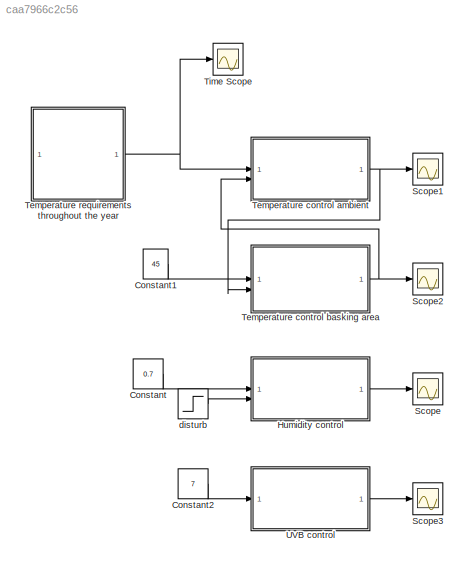
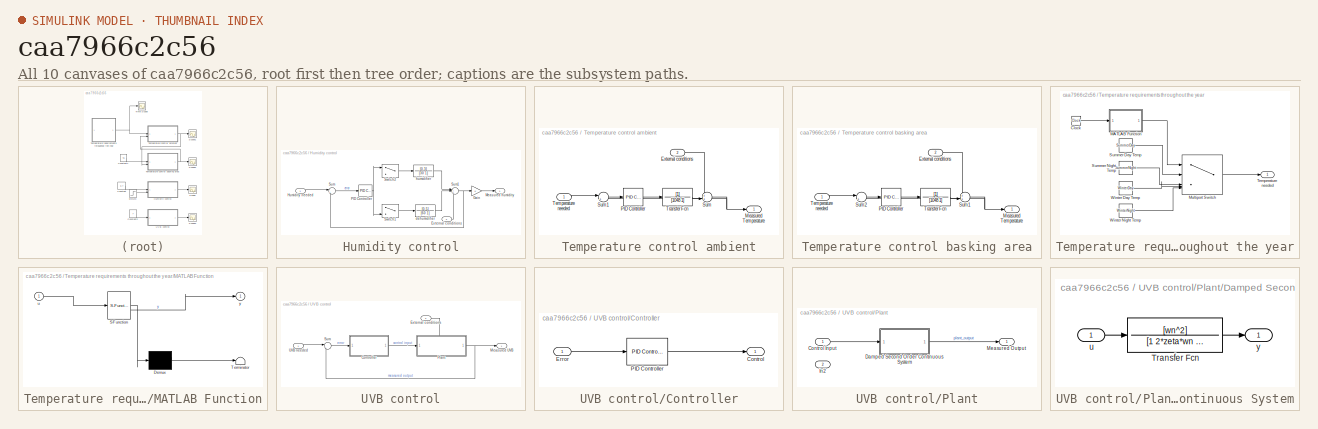
[diagram: thumbnail index - all 10 canvases of the model, root first then tree order]
MODEL slx_caa7966c2c56
KIND model
CONFIG AbsTol = auto
CONFIG EnableMultiTasking = on
CONFIG FixedStep = auto
CONFIG MaxStep = auto
CONFIG MinStep = auto
CONFIG RelTol = 1e-4
CONFIG SampleTimeConstraint = Unconstrained
CONFIG SolverName = VariableStepAuto
CONFIG StartTime = 0.0
CONFIG StopTime = 84600
BLOCK [Constant] Constant
  Value = 0.7
BLOCK [Constant] Constant1
  Value = 45
BLOCK [Constant] Constant2
  Value = 7
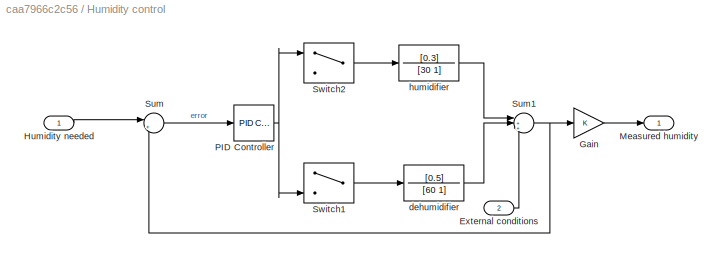
BLOCK [SubSystem] Humidity control
BLOCK [Inport] Humidity control/External conditions
  Port = 2
BLOCK [Gain] Humidity control/Gain
BLOCK [Inport] Humidity control/Humidity needed
BLOCK [Outport] Humidity control/Measured humidity
BLOCK [Reference] Humidity control/PID Controller  REF=slpidlib/PID Controller
  LibrarySourceBlock = simulink/Continuous/PID Controller
  SourceBlock = slpidlib/PID Controller
  SourceType = PID 1dof
BLOCK [Sum] Humidity control/Sum
  Inputs = |+-
BLOCK [Sum] Humidity control/Sum1
  Inputs = |++-
BLOCK [Switch] Humidity control/Switch1
  InputSameDT = off
  SaturateOnIntegerOverflow = off
BLOCK [Switch] Humidity control/Switch2
  InputSameDT = off
  SaturateOnIntegerOverflow = off
BLOCK [TransferFcn] Humidity control/dehumidifier
  Denominator = [60 1]
  Numerator = [0.5]
BLOCK [TransferFcn] Humidity control/humidifier 
  Denominator = [30 1]
  Numerator = [0.3]
BLOCK [Scope] Scope
  Floating = off
  NumInputPorts = 1
  ScopeSpecificationString = Simulink.scopes.TimeScopeBlockCfg('CurrentConfiguration', extmgr.ConfigurationSet(extmgr.Configuration('Core','General UI',true),extmgr.Configuration('Core','Source UI',true),extmgr.Configuration('Sources','WiredSimulink',true,'DataLoggingVariableName','ScopeData1'),extmgr.Configuration('Visuals','Time Domain',true),extmgr.Configuration('Tools','Plot Navigation',true),extmgr.Configuration('Tools',...<+40ch>
BLOCK [Scope] Scope1
  Floating = off
  NumInputPorts = 1
  ScopeSpecificationString = Simulink.scopes.TimeScopeBlockCfg('CurrentConfiguration', extmgr.ConfigurationSet(extmgr.Configuration('Core','General UI',true),extmgr.Configuration('Core','Source UI',true),extmgr.Configuration('Sources','WiredSimulink',true,'DataLoggingVariableName','ScopeData2'),extmgr.Configuration('Visuals','Time Domain',true),extmgr.Configuration('Tools','Plot Navigation',true),extmgr.Configuration('Tools',...<+40ch>
BLOCK [Scope] Scope2
  Floating = off
  NumInputPorts = 1
  ScopeSpecificationString = Simulink.scopes.TimeScopeBlockCfg('CurrentConfiguration', extmgr.ConfigurationSet(extmgr.Configuration('Core','General UI',true),extmgr.Configuration('Core','Source UI',true),extmgr.Configuration('Sources','WiredSimulink',true,'DataLoggingVariableName','ScopeData3'),extmgr.Configuration('Visuals','Time Domain',true),extmgr.Configuration('Tools','Plot Navigation',true),extmgr.Configuration('Tools',...<+40ch>
BLOCK [Scope] Scope3
  Floating = off
  NumInputPorts = 1
  ScopeSpecificationString = Simulink.scopes.TimeScopeBlockCfg('CurrentConfiguration', extmgr.ConfigurationSet(extmgr.Configuration('Core','General UI',true),extmgr.Configuration('Core','Source UI',true),extmgr.Configuration('Sources','WiredSimulink',true,'DataLoggingVariableName','ScopeData1'),extmgr.Configuration('Visuals','Time Domain',true),extmgr.Configuration('Tools','Plot Navigation',true),extmgr.Configuration('Tools',...<+40ch>
BLOCK [SubSystem] Temperature control ambient
BLOCK [Inport] Temperature control ambient/External conditions
  Port = 2
BLOCK [Outport] Temperature control ambient/Measured Temperature
BLOCK [Reference] Temperature control ambient/PID Controller  REF=slpidlib/PID Controller
  LibrarySourceBlock = simulink/Continuous/PID Controller
  SourceBlock = slpidlib/PID Controller
  SourceType = PID 1dof
BLOCK [Sum] Temperature control ambient/Sum
  Inputs = ++|
BLOCK [Sum] Temperature control ambient/Sum1
  Inputs = |+-
BLOCK [Inport] Temperature control ambient/Temperature needed
BLOCK [TransferFcn] Temperature control ambient/Transfer Fcn
  Denominator = [1048 1]
BLOCK [SubSystem] Temperature control basking area
BLOCK [Inport] Temperature control basking area/External conditions
  Port = 2
BLOCK [Outport] Temperature control basking area/Measured Temperature
BLOCK [Reference] Temperature control basking area/PID Controller  REF=slpidlib/PID Controller
  LibrarySourceBlock = simulink/Continuous/PID Controller
  SourceBlock = slpidlib/PID Controller
  SourceType = PID 1dof
BLOCK [Sum] Temperature control basking area/Sum1
  Inputs = ++|
BLOCK [Sum] Temperature control basking area/Sum2
  Inputs = |+-
BLOCK [Inport] Temperature control basking area/Temperature needed
BLOCK [TransferFcn] Temperature control basking area/Transfer Fcn
  Denominator = [1048 1]
BLOCK [SubSystem] Temperature requirements throughout the year
BLOCK [Clock] Temperature requirements throughout the year/Clock
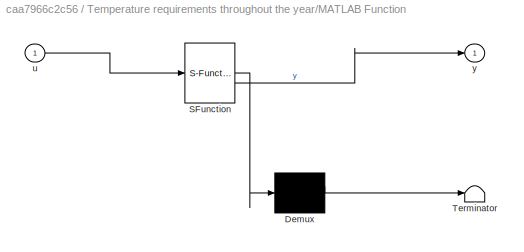
BLOCK [SubSystem] Temperature requirements throughout the year/MATLAB Function
  ErrorFcn = Stateflow.Translate.translate
  PermitHierarchicalResolution = ExplicitOnly
  SFBlockType = MATLAB Function
  TreatAsAtomicUnit = on
BLOCK [Demux] Temperature requirements throughout the year/MATLAB Function/ Demux 
  Outputs = 1
BLOCK [S-Function] Temperature requirements throughout the year/MATLAB Function/ SFunction 
  EnableBusSupport = on
  FunctionName = sf_sfun
  PortCounts = [1 2]
  SFcnIsStateOwnerBlock = off
  SFunctionDeploymentMode = off
  Tag = Stateflow S-Function 2
BLOCK [Terminator] Temperature requirements throughout the year/MATLAB Function/ Terminator 
BLOCK [Inport] Temperature requirements throughout the year/MATLAB Function/u
BLOCK [Outport] Temperature requirements throughout the year/MATLAB Function/y
BLOCK [MultiPortSwitch] Temperature requirements throughout the year/Multiport Switch
  InputSameDT = off
  Inputs = 4
  SaturateOnIntegerOverflow = off
BLOCK [Constant] Temperature requirements throughout the year/Summer Day Temp
  Value = SummerDay
BLOCK [Constant] Temperature requirements throughout the year/Summer Night Temp
  Value = SummerNight
BLOCK [Outport] Temperature requirements throughout the year/Temperature needed
BLOCK [Constant] Temperature requirements throughout the year/Winter Day Temp
  Value = WinterDay
BLOCK [Constant] Temperature requirements throughout the year/Winter Night Temp
  Value = WinterNight
BLOCK [Scope] Time Scope
  DefaultConfigurationName = spbscopes.TimeScopeBlockCfg
  Floating = off
  NumInputPorts = 1
  ScopeSpecificationString = spbscopes.TimeScopeBlockCfg('CurrentConfiguration', extmgr.ConfigurationSet(extmgr.Configuration('Core','General UI',true,'FigureColor',[0.156862745098039 0.156862745098039 0.156862745098039]),extmgr.Configuration('Core','Source UI',true),extmgr.Configuration('Sources','WiredSimulink',true),extmgr.Configuration('Visuals','Time Domain',true,'DisplayPropertyDefaults',struct('MinYLimReal','16.5','Max...<+1955ch>
  UserDataPersistent = on
BLOCK [SubSystem] UVB control
BLOCK [SubSystem] UVB control/Controller
BLOCK [Outport] UVB control/Controller/Control
BLOCK [Inport] UVB control/Controller/Error
BLOCK [Reference] UVB control/Controller/PID Controller  REF=slpidlib/PID Controller
  SourceBlock = slpidlib/PID Controller
  SourceType = PID 1dof
BLOCK [Inport] UVB control/External conditions
  Port = 2
BLOCK [Outport] UVB control/Measured UVB
BLOCK [SubSystem] UVB control/Plant
  PortSchema = {"entries":[{"content":{"sides":[{"content":{"connectorIds":["In1"]},"type":"ConnectorPlacement.EquallySpacedRectSide","uuid":"26f79cc7-5feb-4c98-93df-dd324920996c"},{"content":{"connectorIds":["Out1"],"side":"RIGHT"},"type":"ConnectorPlacement.EquallySpacedRectSide","uuid":"f898e693-c79b-4fe0-b7bd-2b08ebeb6d2b"},{"content":{"connectorIds":["In2"],"side":"TOP"},"type":"ConnectorPlacement.EquallySp...<+245ch>
BLOCK [Inport] UVB control/Plant/Control Input
BLOCK [SubSystem] UVB control/Plant/Damped Second Order Continuous System
BLOCK [TransferFcn] UVB control/Plant/Damped Second Order Continuous System/Transfer Fcn
  Denominator = [1 2*zeta*wn wn^2]
  Numerator = [wn^2]
BLOCK [Inport] UVB control/Plant/Damped Second Order Continuous System/u
BLOCK [Outport] UVB control/Plant/Damped Second Order Continuous System/y
BLOCK [Inport] UVB control/Plant/In2
  Port = 2
BLOCK [Outport] UVB control/Plant/Measured Output
BLOCK [Sum] UVB control/Sum
  Inputs = |+-
BLOCK [Inport] UVB control/UVB needed
BLOCK [Step] disturb
  After = 0.8
  Before = 0.6
  SampleTime = 0
  Time = 150
LINE Constant1:1 -> Temperature control basking area:1
LINE Constant2:1 -> UVB control:1
LINE Constant:1 -> Humidity control:1
LINE Humidity control/External conditions:1 -> Humidity control/Sum1:3
LINE Humidity control/Gain:1 -> Humidity control/Measured humidity:1
LINE Humidity control/Humidity needed:1 -> Humidity control/Sum:1
NET Humidity control/PID Controller:1 -> Humidity control/Switch1:3, Humidity control/Switch2:1
NET Humidity control/Sum1:1 -> Humidity control/Gain:1, Humidity control/Sum:2
LINE Humidity control/Sum:1 -> Humidity control/PID Controller:1
LINE Humidity control/Switch1:1 -> Humidity control/dehumidifier:1
LINE Humidity control/Switch2:1 -> Humidity control/humidifier :1
LINE Humidity control/dehumidifier:1 -> Humidity control/Sum1:2
LINE Humidity control/humidifier :1 -> Humidity control/Sum1:1
LINE Humidity control:1 -> Scope:1
LINE Temperature control ambient/External conditions:1 -> Temperature control ambient/Sum:1
LINE Temperature control ambient/PID Controller:1 -> Temperature control ambient/Transfer Fcn:1
LINE Temperature control ambient/Sum1:1 -> Temperature control ambient/PID Controller:1
NET Temperature control ambient/Sum:1 -> Temperature control ambient/Measured Temperature:1, Temperature control ambient/Sum1:2
LINE Temperature control ambient/Temperature needed:1 -> Temperature control ambient/Sum1:1
LINE Temperature control ambient/Transfer Fcn:1 -> Temperature control ambient/Sum:2
NET Temperature control ambient:1 -> Scope1:1, Temperature control basking area:2
LINE Temperature control basking area/External conditions:1 -> Temperature control basking area/Sum1:1
LINE Temperature control basking area/PID Controller:1 -> Temperature control basking area/Transfer Fcn:1
NET Temperature control basking area/Sum1:1 -> Temperature control basking area/Measured Temperature:1, Temperature control basking area/Sum2:2
LINE Temperature control basking area/Sum2:1 -> Temperature control basking area/PID Controller:1
LINE Temperature control basking area/Temperature needed:1 -> Temperature control basking area/Sum2:1
LINE Temperature control basking area/Transfer Fcn:1 -> Temperature control basking area/Sum1:2
NET Temperature control basking area:1 -> Scope2:1, Temperature control ambient:2
LINE Temperature requirements throughout the year/Clock:1 -> Temperature requirements throughout the year/MATLAB Function:1
LINE Temperature requirements throughout the year/MATLAB Function:1 -> Temperature requirements throughout the year/Multiport Switch:1
LINE Temperature requirements throughout the year/Multiport Switch:1 -> Temperature requirements throughout the year/Temperature needed:1
LINE Temperature requirements throughout the year/Summer Day Temp:1 -> Temperature requirements throughout the year/Multiport Switch:2
LINE Temperature requirements throughout the year/Summer Night Temp:1 -> Temperature requirements throughout the year/Multiport Switch:3
LINE Temperature requirements throughout the year/Winter Day Temp:1 -> Temperature requirements throughout the year/Multiport Switch:4
LINE Temperature requirements throughout the year/Winter Night Temp:1 -> Temperature requirements throughout the year/Multiport Switch:5
NET Temperature requirements throughout the year:1 -> Temperature control ambient:1, Time Scope:1
LINE UVB control/Controller/Error:1 -> UVB control/Controller/PID Controller:1
LINE UVB control/Controller/PID Controller:1 -> UVB control/Controller/Control:1
LINE UVB control/Controller:1 -> UVB control/Plant:1
LINE UVB control/External conditions:1 -> UVB control/Plant:2
LINE UVB control/Plant/Control Input:1 -> UVB control/Plant/Damped Second Order Continuous System:1
LINE UVB control/Plant/Damped Second Order Continuous System/Transfer Fcn:1 -> UVB control/Plant/Damped Second Order Continuous System/y:1
LINE UVB control/Plant/Damped Second Order Continuous System/u:1 -> UVB control/Plant/Damped Second Order Continuous System/Transfer Fcn:1
LINE UVB control/Plant/Damped Second Order Continuous System:1 -> UVB control/Plant/Measured Output:1
NET UVB control/Plant:1 -> UVB control/Measured UVB:1, UVB control/Sum:2
LINE UVB control/Sum:1 -> UVB control/Controller:1
LINE UVB control/UVB needed:1 -> UVB control/Sum:1
LINE UVB control:1 -> Scope3:1
LINE disturb:1 -> Humidity control:2
note: NET lines group one-source signal fan-out (src -> all destinations, sorted); 1:1 wires keep LINE
CHART Temperature requirements throughout the year/MATLAB Function states=1 transitions=1
  STATE_LABEL 'eML_blk_kernel()'
  STATE_LABEL 'SCRIPT:\nfunction y = fcn(u)\n    persistent rDaily rSeason;  % Retain values between function calls (Simulink)\n    \n    % Initialize persistent variables if not set\n    if isempty(rDaily)\n        rDaily = 0;\n    end\n    if isempty(rSeason)\n        rSeason = 0;\n    end\n    \n    % Extract time components\n    TDaily = u - rDaily * 24 * 60 * 60;  % Time since last daily reset\n    TSeason = u - rSeason ...<+1135ch>'
CHART  states=0 transitions=0
